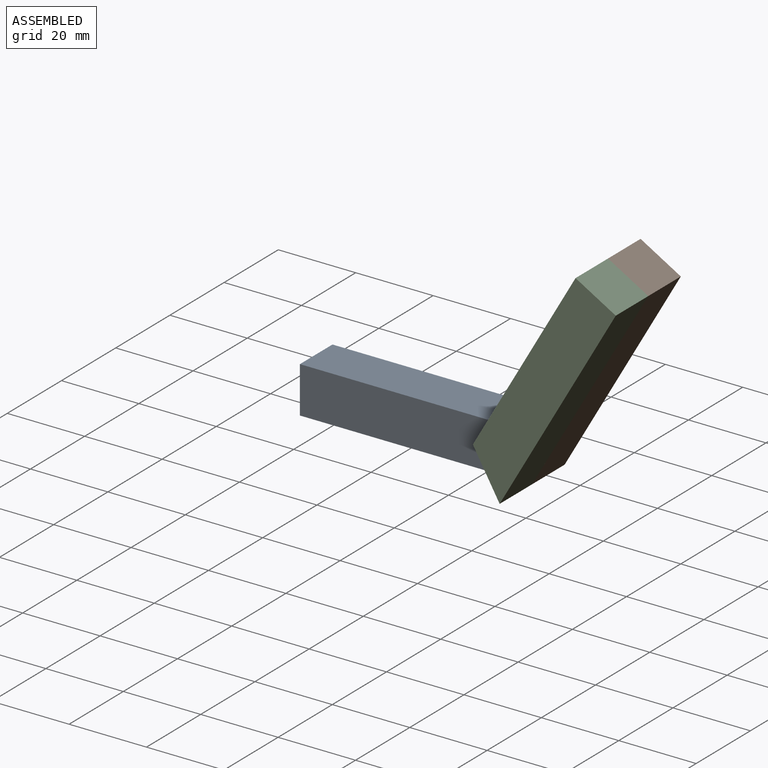
[diagram: assembled view]
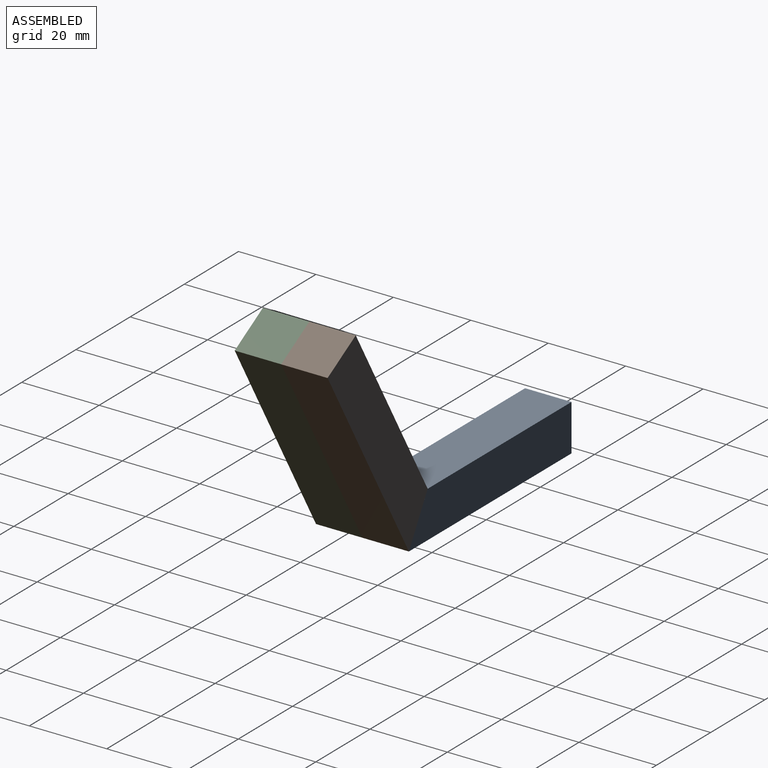
[diagram: assembled view, second angle]
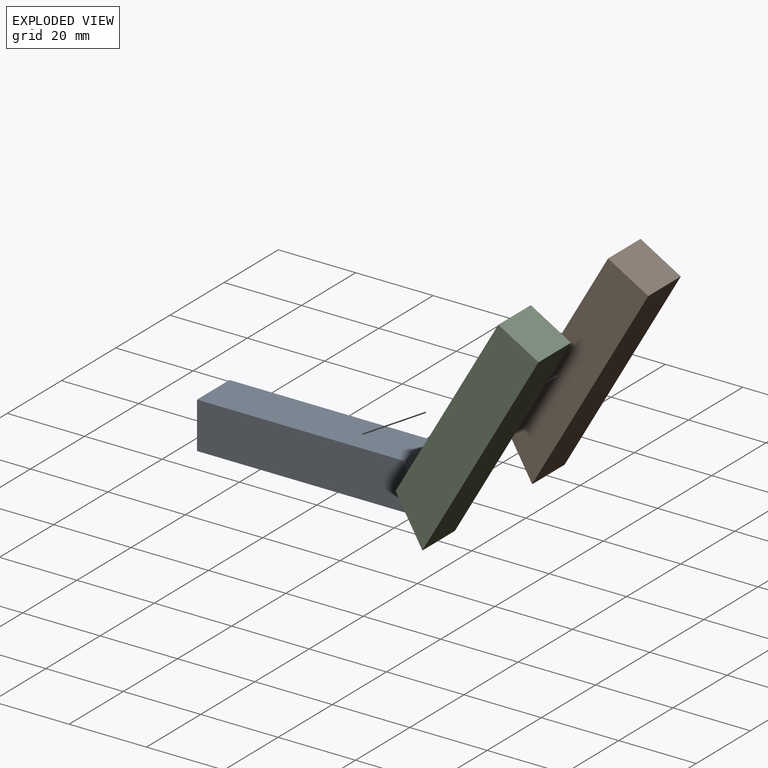
[diagram: exploded view]
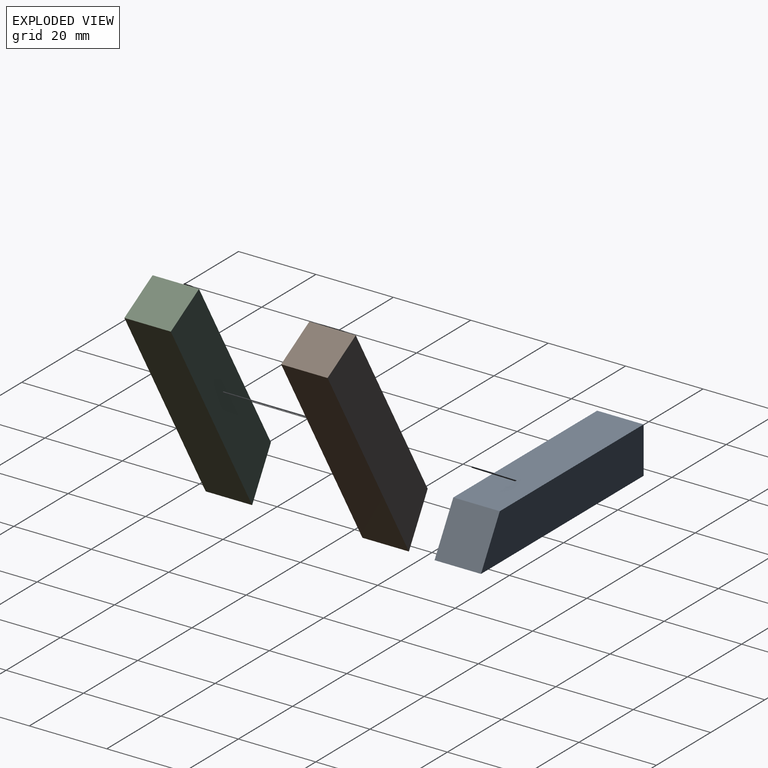
[diagram: exploded view, second angle]
ASSEMBLY  parts=3 mates=3
PART A: 6 faces, bbox 60x12x12 mm
  f0: plane 12x12mm, normal (-1,0,0), area 144mm2, adj f1,f3,f4,f5
  f1: plane 60x12mm, normal (0,0,-1), area 720mm2, adj f0,f2,f4,f5
  f2: plane 12x12mm, normal (0.87,0,0.5), area 166.3mm2, adj f1,f3,f4,f5
  f3: plane 53.07x12mm, normal (0,0,1), area 636.9mm2, adj f0,f2,f4,f5
  f4: plane 60x12mm, normal (0,-1,0), area 678.4mm2, adj f0,f1,f2,f3
  f5: plane 60x12mm, normal (0,1,0), area 678.4mm2, adj f0,f1,f2,f3
PART B: same geometry as A
PART C: same geometry as A
PLACE A t=(-27.66,16.69,9.08)mm fixed
PLACE B rot(axis=(0.5,0,-0.87),180deg) t=(62.34,4.69,61.04)mm
PLACE C rot(axis=(-0.5,0,0.87),180deg) t=(62.34,-7.31,61.04)mm
MATE fastened B.f2 <-> A.f2  axis (-0.87,0,-0.5) through (28.87,10.69,15.08)mm
MATE planar A.f4 <-> B.f5  axis (0,-1,0) through (0.64,4.69,14.96)mm
MATE fastened B.f5 <-> C.f4  axis (0,-1,0) through (43.1,4.69,39.47)mm
